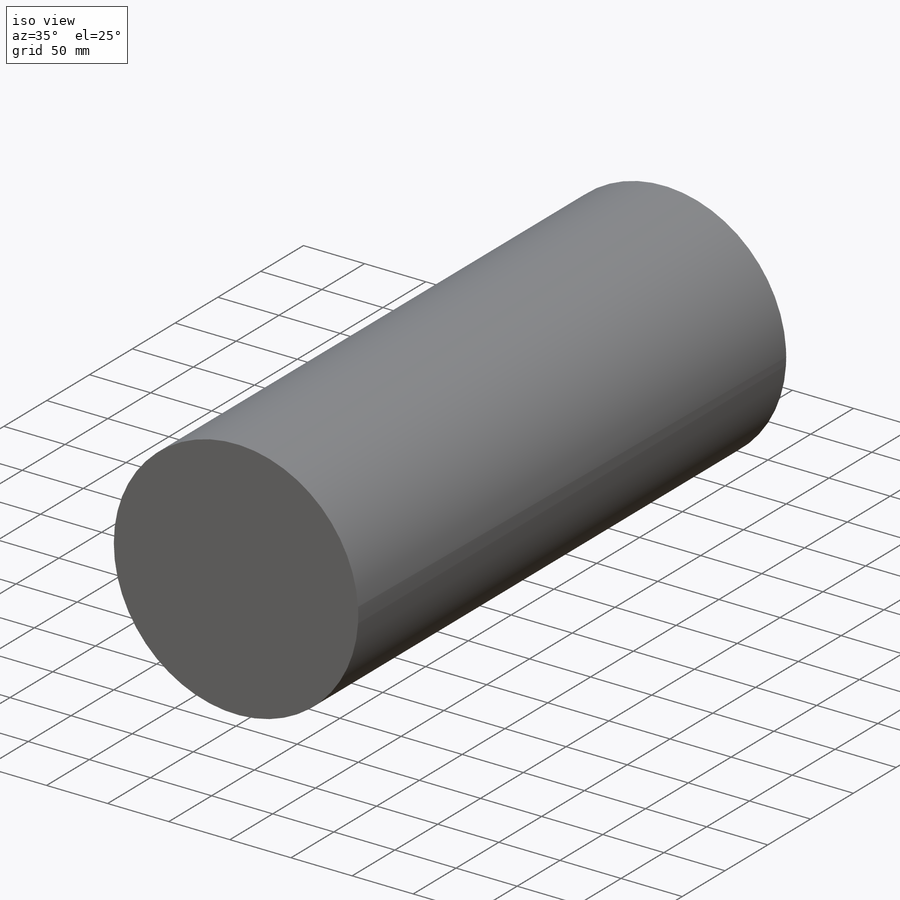
[diagram: iso view]
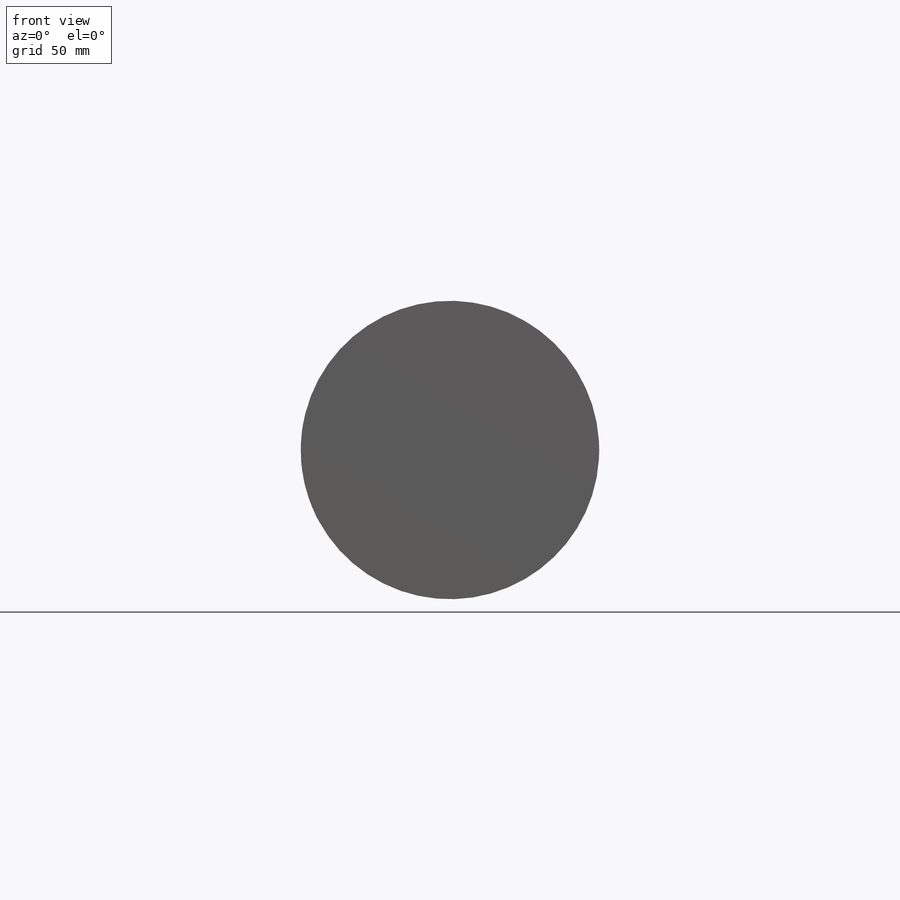
[diagram: front view]
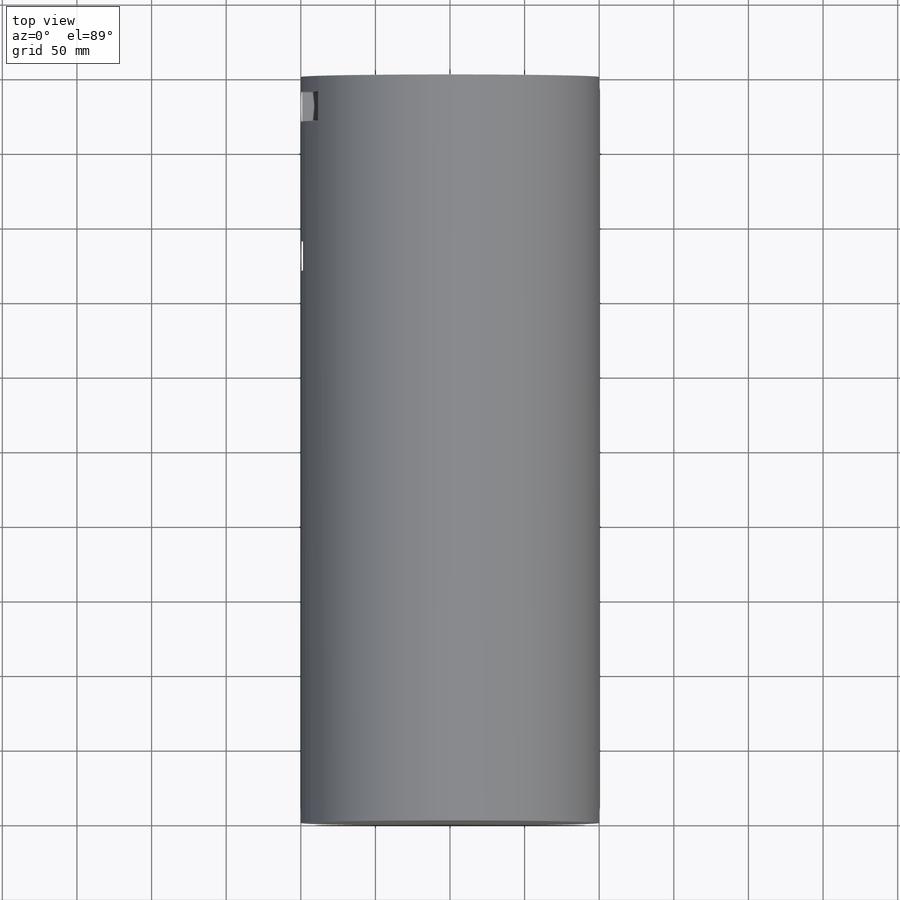
[diagram: top view]
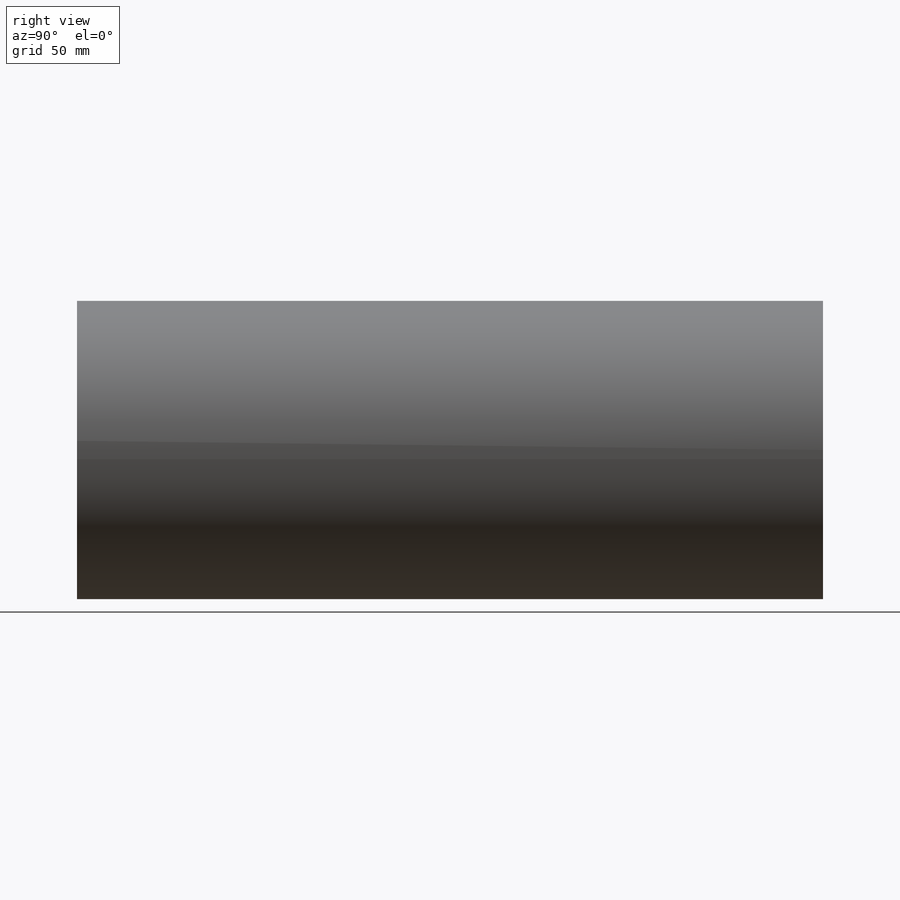
[diagram: right view]
SOLIDWORKS PART (.sldprt)
format: sldprt  version: not decoded by parser v0  size: 190,976 bytes
history: native  units: mm
features: plane x5, sketch x5, material x1, extrude x1, helix x1, cut_extrude x1 (+10 scaffold rows collapsed)
feature tree (24):
  scaffold x10  (default folders/planes/origin — collapsed)
  material  "S235JR    "
  plane  "Ebene vorne"
  plane  "Ebene oben"
  plane  "Ebene rechts"
  sketch  "Skizze1"  dims[D1=200.0mm]
  extrude  "Aufsatz-Linear austragen1"  Depth=500mm
  plane  "Ebene2"  Offset=20mm
  sketch  "Skizze2"  dims[D1=200.0mm]
  helix  "Spirale/Helix1"  Pitch=2000mm
  plane  "Ebene1"
  sketch  "Skizze3"  dims[c1.D1=~88.82879mm c1.D2=~42.563795mm c2.D1=20.0mm c2.D2=60.0mm c2.D3=60.0mm]
  cut_extrude  "Schnitt-Linear austragen1"  Depth=20mm
  sketch  "Skizze4"  dims[D1=~934.528883mm]
  sketch  "3D-Skizze1"  dims[c1.D1=~27.901584mm c2.D1=~4.050086mm c3.D1=~155.589366mm c4.D1=~48.394687mm c5.D1=~19.927096mm c6.D1=~155.589367mm c6.D2=~11.925281mm c7.D2=~0.246822mm c7.D1=~72.22651mm c8.D1=~35.80833mm c9.D1=~28.940286mm c10.D1=~499.999984mm c10.D2=~499.999984mm c11.D1=~519.615225mm c11.D2=~519.615225mm c12.D1=~499.999984mm c12.D2=400.0mm c13.D1=~125.880513mm c14.D1=~499.999984mm c14.D2=400.0mm c15.D1=~19.874944mm c16.D1=~0.75727mm c17.D1=100.0mm c18.D1=2.0 c18.D3=104.82mm c18.D2=1.0 c18.D4=50.0mm]
decode coverage: 8 of 8 modeling features carry decoded parameters
note: ~ marks probable driven/reference dimensions
note: suppression state not decoded; provenance and decode notes live in map.json
